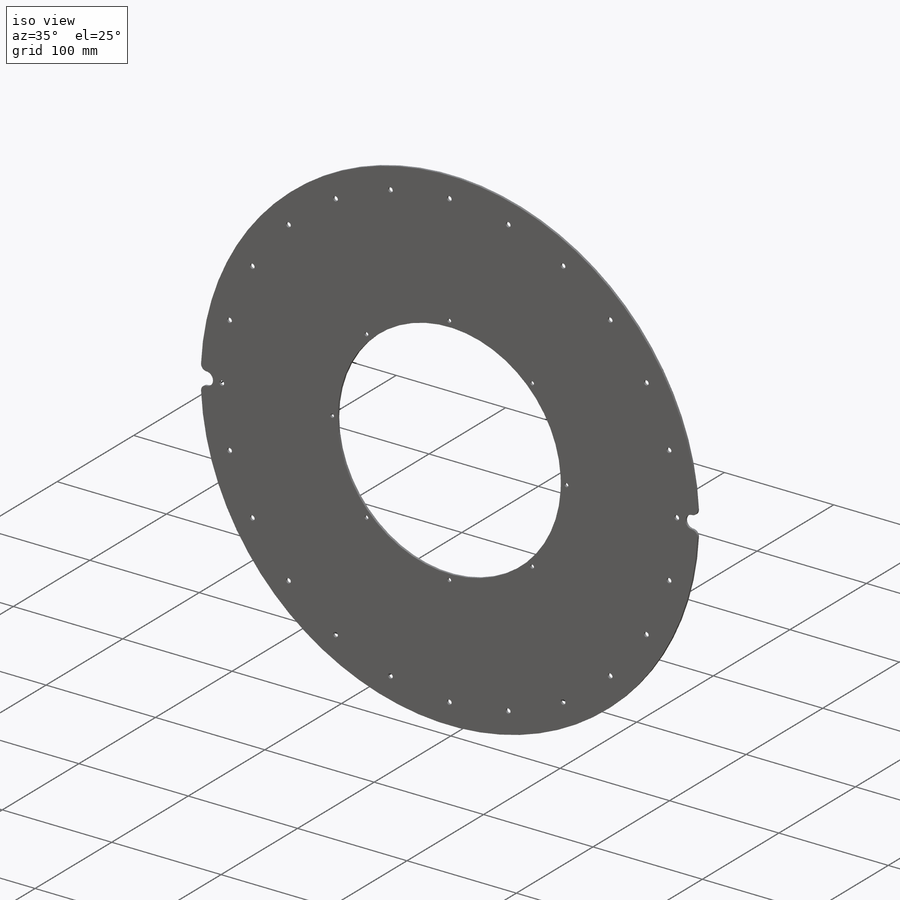
[diagram: iso view]
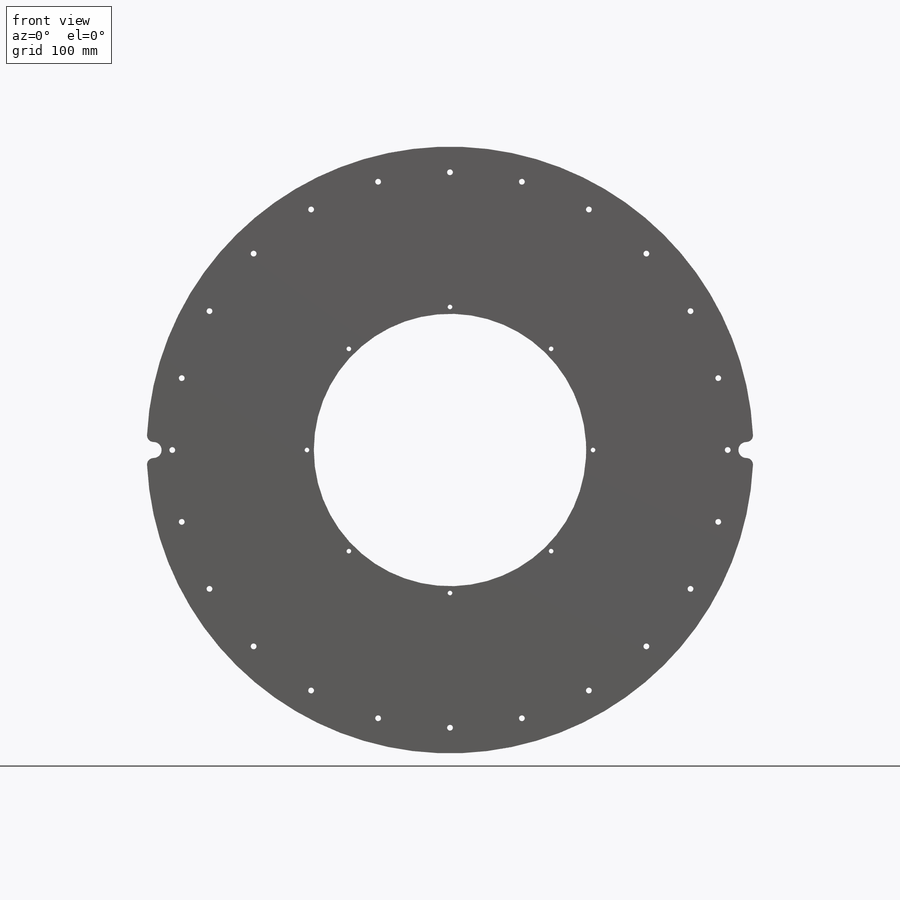
[diagram: front view]
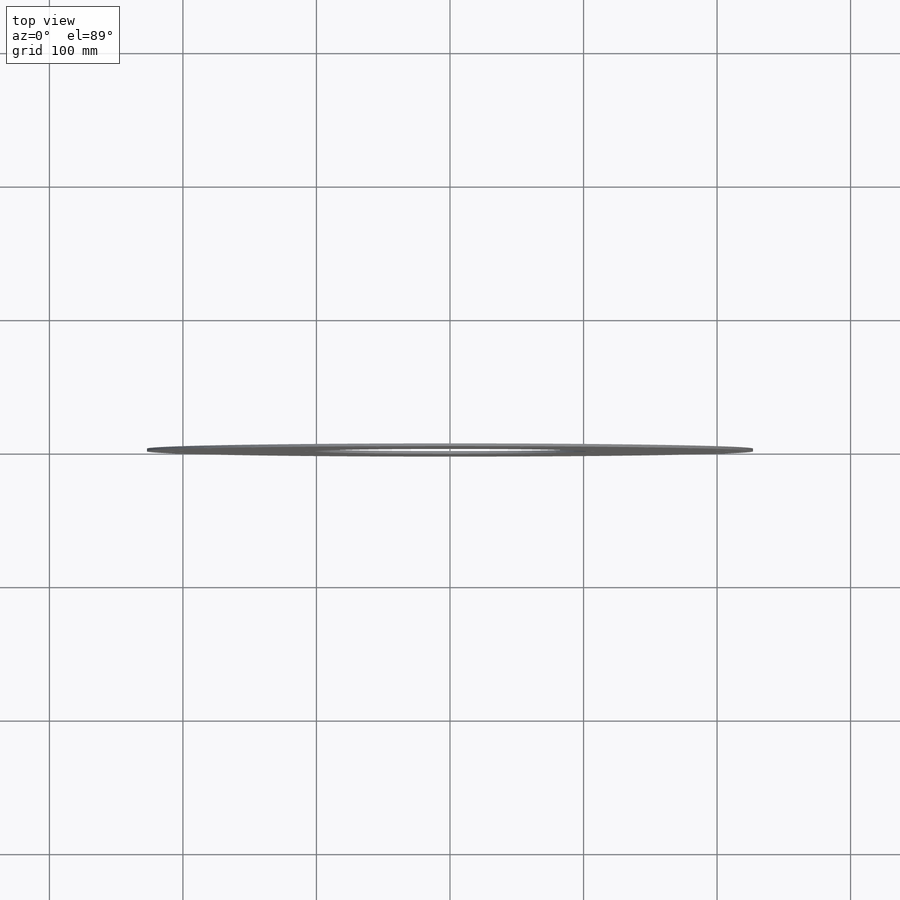
[diagram: top view]
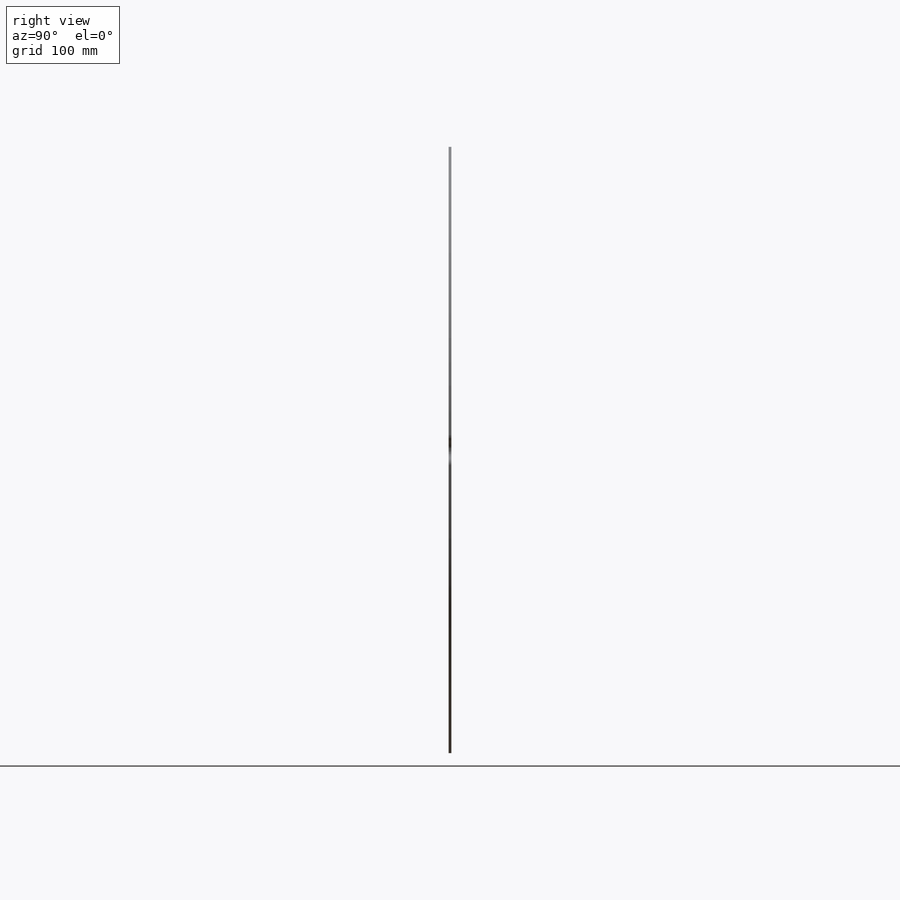
[diagram: right view]
SOLIDWORKS PART (.sldprt)
format: sldprt  version: not decoded by parser v0  size: 514,048 bytes
history: native  units: mm
features: sketch x10, hole x3, extrude x2, cut_extrude x2, material x1, pattern_circular x1 (+11 scaffold rows collapsed)
feature tree (30):
  scaffold x11  (default folders/planes/origin — collapsed)
  material  "Isotropic CFRP"
  sketch  "Sketch1"  dims[D1=454.4mm D2=204.0mm]
  extrude  "Extrude1"  Depth=2mm
  sketch  "Sketch2"
  extrude  "Boss-Extrude1"  [1 undecoded]
  sketch  "Sketch3"  dims[D1=206.5mm]
  cut_extrude  "Cut-Extrude1"  Depth=0.5mm
  hole  "M4 Clearance Hole1"  Diameter=4.3mm Depth=2mm
  sketch  "Sketch5"  dims[D1=208.0mm]
  sketch  "Sketch4"  dims[hole-wizard template sketch: 60 standard entries collapsed; hole parameters kept: c18.Thru Hole Depth=2.0mm]
  pattern_circular  "CirPattern1"  Count=24 Angle=360deg
  hole  "M4 Clearance Hole2"  Diameter=4.3mm Depth=2mm
  sketch  "Sketch7"  dims[D1=14.0mm]
  sketch  "Sketch6"  dims[hole-wizard template sketch: 60 standard entries collapsed; hole parameters kept: c18.Thru Hole Depth=2.0mm]
  hole  "M3 Clearance Hole1"  Diameter=3.4mm Depth=2mm
  sketch  "Sketch9"
  sketch  "Sketch10"  dims[hole-wizard template sketch: 61 standard entries collapsed; hole parameters above]
  sketch  "Sketch11"  dims[D1=6.0mm]
  cut_extrude  "Cut-Extrude2"  [1 undecoded]
decode coverage: 14 of 18 modeling features carry decoded parameters
note: ~ marks probable driven/reference dimensions
note: 2 parameter values undecoded
note: suppression state not decoded; provenance and decode notes live in map.json
